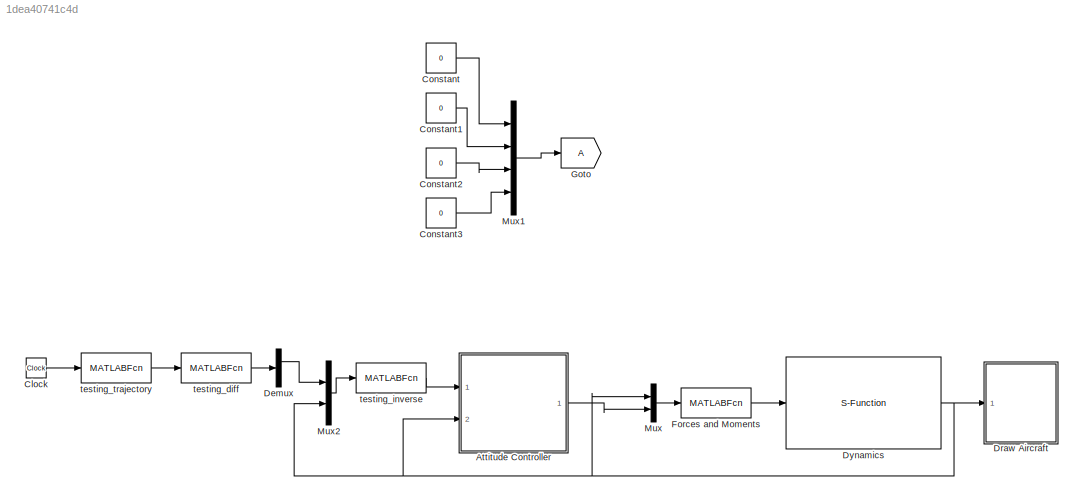
MODEL slx_1dea40741c4d
KIND model
CONFIG AbsTol = auto
CONFIG FixedStep = 0.001
CONFIG MaxStep = auto
CONFIG MinStep = auto
CONFIG RelTol = 1e-3
CONFIG SampleTimeConstraint = Unconstrained
CONFIG Solver = ode45
CONFIG SolverMode = Auto
CONFIG SolverName = ode45
CONFIG StartTime = 0.0
CONFIG StopTime = inf
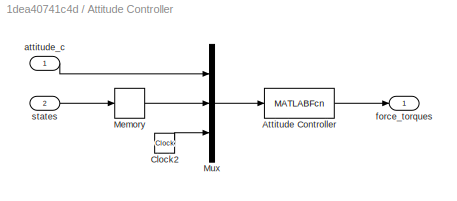
BLOCK [SubSystem] Attitude Controller
  Ports = [2, 1]
  RequestExecContextInheritance = off
BLOCK [MATLABFcn] Attitude Controller/Attitude Controller
  MATLABFcn = attitude_controller(u,P)
  OutputDimensions = 4
  Ports = [1, 1]
  SampleTime = 0.002
BLOCK [Clock] Attitude Controller/Clock2
BLOCK [Memory] Attitude Controller/Memory
BLOCK [Mux] Attitude Controller/Mux
  DisplayOption = bar
  Inputs = 3
  Ports = [3, 1]
BLOCK [Inport] Attitude Controller/attitude_c
  IconDisplay = Port number
BLOCK [Outport] Attitude Controller/force_torques
  IconDisplay = Port number
BLOCK [Inport] Attitude Controller/states
  IconDisplay = Port number
  Port = 2
BLOCK [Clock] Clock
BLOCK [Constant] Constant
  Value = 0
BLOCK [Constant] Constant1
  Value = 0
BLOCK [Constant] Constant2
  Value = 0
BLOCK [Constant] Constant3
  Value = 0
BLOCK [Demux] Demux
  DisplayOption = bar
  Outputs = [4 7]
  Ports = [1, 2]
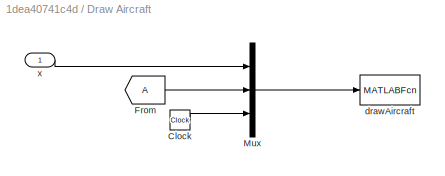
BLOCK [SubSystem] Draw Aircraft
  Ports = [1]
  RequestExecContextInheritance = off
BLOCK [Clock] Draw Aircraft/Clock
BLOCK [From] Draw Aircraft/From
  TagVisibility = global
BLOCK [Mux] Draw Aircraft/Mux
  DisplayOption = bar
  Inputs = 3
  Ports = [3, 1]
BLOCK [MATLABFcn] Draw Aircraft/drawAircraft
  MATLABFcn = testing_drawAircraft(u,V,F,colors)
  OutputDimensions = 0
  Ports = [1]
  SampleTime = 0.1
BLOCK [Inport] Draw Aircraft/x
  IconDisplay = Port number
BLOCK [S-Function] Dynamics
  FunctionName = testing_dynamics
  Parameters = P
  Ports = [1, 1]
BLOCK [MATLABFcn] Forces and Moments
  MATLABFcn = forces_moments(u,P)
  OutputDimensions = 4
  Ports = [1, 1]
BLOCK [Goto] Goto
  TagVisibility = global
BLOCK [Mux] Mux
  DisplayOption = bar
  Inputs = 2
  Ports = [2, 1]
BLOCK [Mux] Mux1
  DisplayOption = bar
  Ports = [4, 1]
BLOCK [Mux] Mux2
  DisplayOption = bar
  Inputs = 2
  Ports = [2, 1]
BLOCK [MATLABFcn] testing_diff
  MATLABFcn = testing_diff(u,P)
  OutputDimensions = 11
  Ports = [1, 1]
BLOCK [MATLABFcn] testing_inverse
  MATLABFcn = testing_inverse(u,P)
  OutputDimensions = 4
  Ports = [1, 1]
BLOCK [MATLABFcn] testing_trajectory
  MATLABFcn = trajectory(u,P)
  OutputDimensions = 11
  Ports = [1, 1]
LINE Attitude Controller/Attitude Controller:1 -> Attitude Controller/force_torques:1
LINE Attitude Controller/Clock2:1 -> Attitude Controller/Mux:3
LINE Attitude Controller/Memory:1 -> Attitude Controller/Mux:2
LINE Attitude Controller/Mux:1 -> Attitude Controller/Attitude Controller:1
LINE Attitude Controller/attitude_c:1 -> Attitude Controller/Mux:1
LINE Attitude Controller/states:1 -> Attitude Controller/Memory:1
LINE Attitude Controller:1 -> Mux:2
LINE Clock:1 -> testing_trajectory:1
LINE Constant1:1 -> Mux1:2
LINE Constant2:1 -> Mux1:3
LINE Constant3:1 -> Mux1:4
LINE Constant:1 -> Mux1:1
LINE Demux:1 -> Mux2:1
LINE Draw Aircraft/Clock:1 -> Draw Aircraft/Mux:3
LINE Draw Aircraft/From:1 -> Draw Aircraft/Mux:2
LINE Draw Aircraft/Mux:1 -> Draw Aircraft/drawAircraft:1
LINE Draw Aircraft/x:1 -> Draw Aircraft/Mux:1
NET Dynamics:1 -> Attitude Controller:2, Draw Aircraft:1, Mux2:2, Mux:1
LINE Forces and Moments:1 -> Dynamics:1
LINE Mux1:1 -> Goto:1
LINE Mux2:1 -> testing_inverse:1
LINE Mux:1 -> Forces and Moments:1
LINE testing_diff:1 -> Demux:1
LINE testing_inverse:1 -> Attitude Controller:1
LINE testing_trajectory:1 -> testing_diff:1
note: NET lines group one-source signal fan-out (src -> all destinations, sorted); 1:1 wires keep LINE
